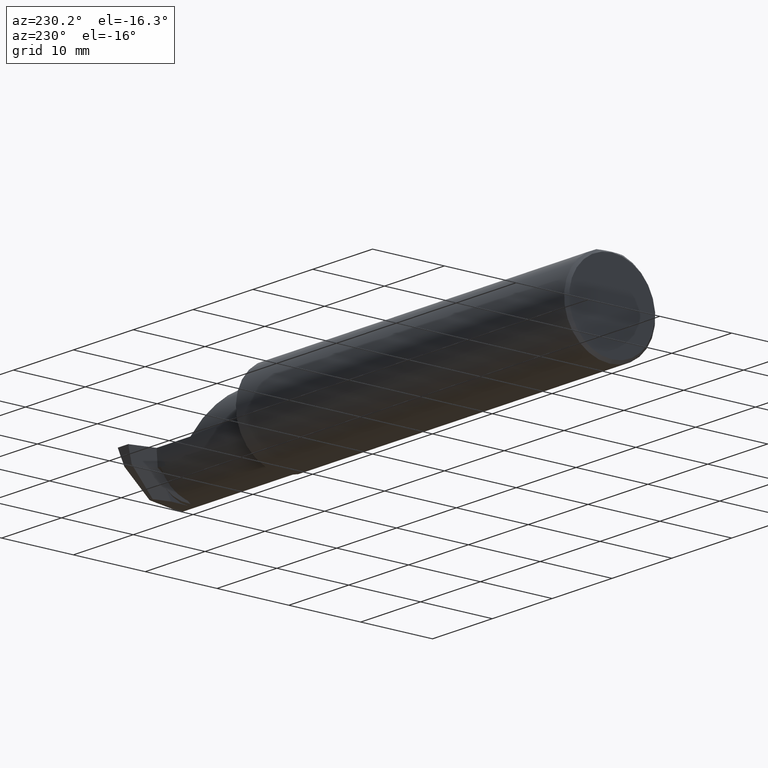
[diagram: clean part render]
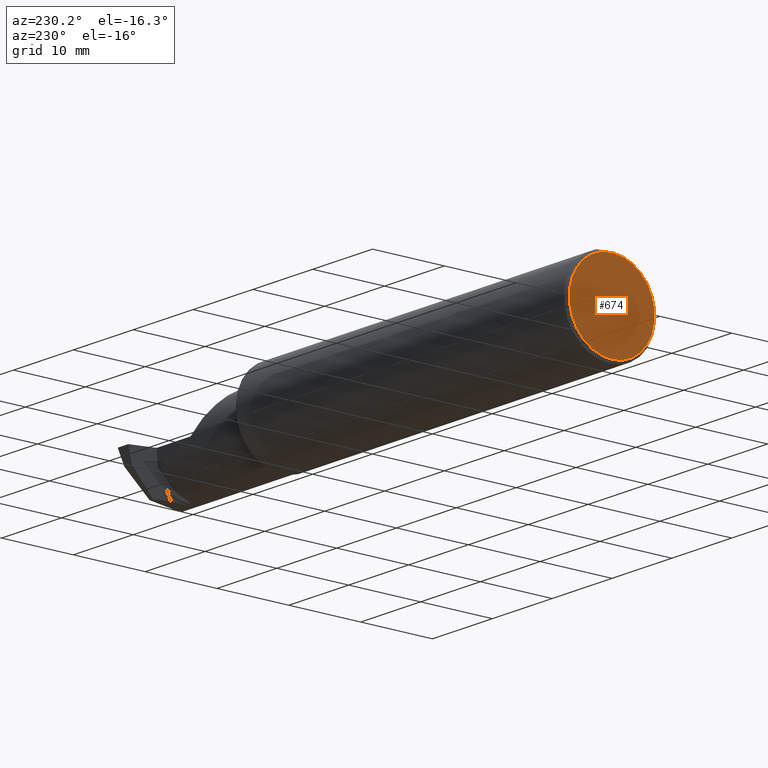
[diagram: same view with one face highlighted and labeled with its STEP entity id]
A machine part, auxiliary view. The second image highlights one B-rep face of the part: STEP entity #674.
In plain terms, the highlighted planar face has unit normal (1, 0, 0).
Its self-contained STEP definition (entity closure, byte-faithful):
#25 = DIRECTION ( 'NONE',  ( 1.000000000000000000, 0.000000000000000000, 0.000000000000000000 ) ) ;
#30 = CARTESIAN_POINT ( 'NONE',  ( 0.000000000000000000, 2.967931517733600783E-17, 0.2348499999999984211 ) ) ;
#71 = DIRECTION ( 'NONE',  ( 0.000000000000000000, 0.000000000000000000, -1.000000000000000000 ) ) ;
#138 = CIRCLE ( 'NONE', #695, 0.2348499999999984211 ) ;
#179 = FACE_OUTER_BOUND ( 'NONE', #921, .T. ) ;
#202 = ORIENTED_EDGE ( 'NONE', *, *, #243, .T. ) ;
#231 = EDGE_CURVE ( 'NONE', #925, #752, #138, .T. ) ;
#243 = EDGE_CURVE ( 'NONE', #752, #925, #879, .T. ) ;
#291 = CARTESIAN_POINT ( 'NONE',  ( 0.000000000000000000, 0.000000000000000000, 0.000000000000000000 ) ) ;
#300 = DIRECTION ( 'NONE',  ( 0.000000000000000000, 0.000000000000000000, -1.000000000000000000 ) ) ;
#316 = AXIS2_PLACEMENT_3D ( 'NONE', #793, #938, #71 ) ;
#319 = DIRECTION ( 'NONE',  ( 0.000000000000000000, 0.000000000000000000, -1.000000000000000000 ) ) ;
#462 = CARTESIAN_POINT ( 'NONE',  ( 0.000000000000000000, 0.000000000000000000, -0.2348499999999984211 ) ) ;
#503 = AXIS2_PLACEMENT_3D ( 'NONE', #617, #25, #319 ) ;
#617 = CARTESIAN_POINT ( 'NONE',  ( 0.000000000000000000, 0.000000000000000000, 0.000000000000000000 ) ) ;
#674 = ADVANCED_FACE ( 'NONE', ( #179 ), #686, .F. ) ;
#686 = PLANE ( 'NONE',  #503 ) ;
#695 = AXIS2_PLACEMENT_3D ( 'NONE', #291, #807, #300 ) ;
#752 = VERTEX_POINT ( 'NONE', #462 ) ;
#793 = CARTESIAN_POINT ( 'NONE',  ( 0.000000000000000000, 0.000000000000000000, 0.000000000000000000 ) ) ;
#807 = DIRECTION ( 'NONE',  ( -1.000000000000000000, -0.000000000000000000, -0.000000000000000000 ) ) ;
#828 = ORIENTED_EDGE ( 'NONE', *, *, #231, .T. ) ;
#879 = CIRCLE ( 'NONE', #316, 0.2348499999999984211 ) ;
#921 = EDGE_LOOP ( 'NONE', ( #202, #828 ) ) ;
#925 = VERTEX_POINT ( 'NONE', #30 ) ;
#938 = DIRECTION ( 'NONE',  ( -1.000000000000000000, -0.000000000000000000, -0.000000000000000000 ) ) ;